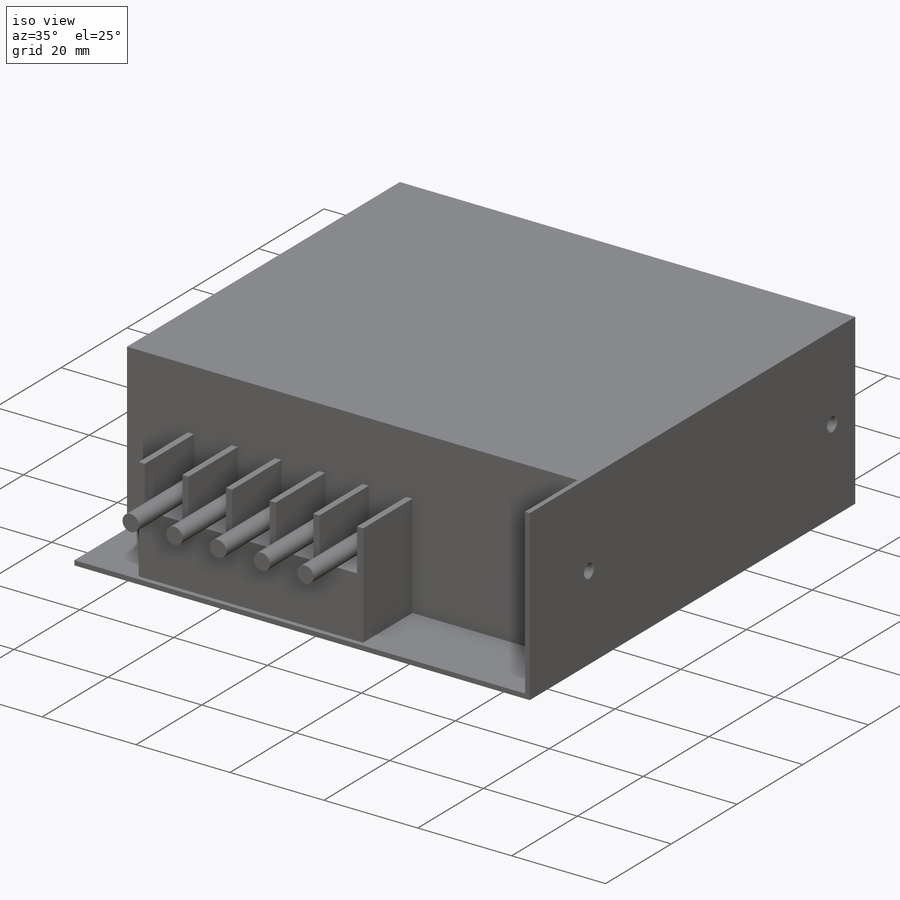
[diagram: iso view]
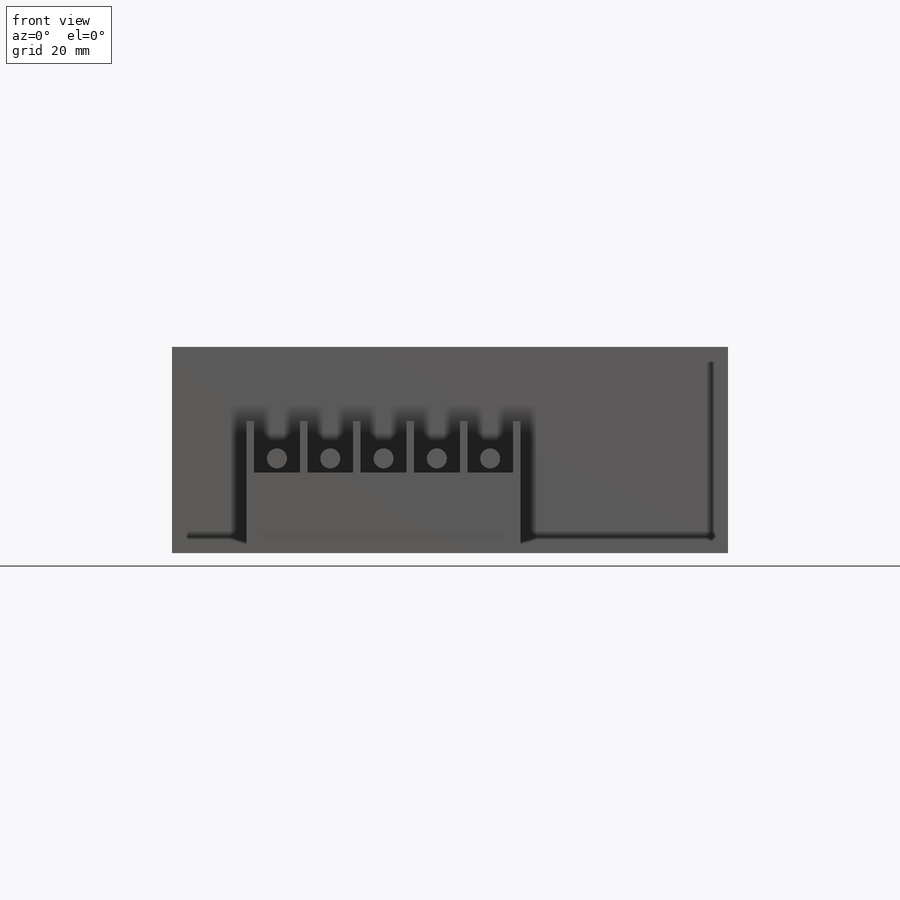
[diagram: front view]
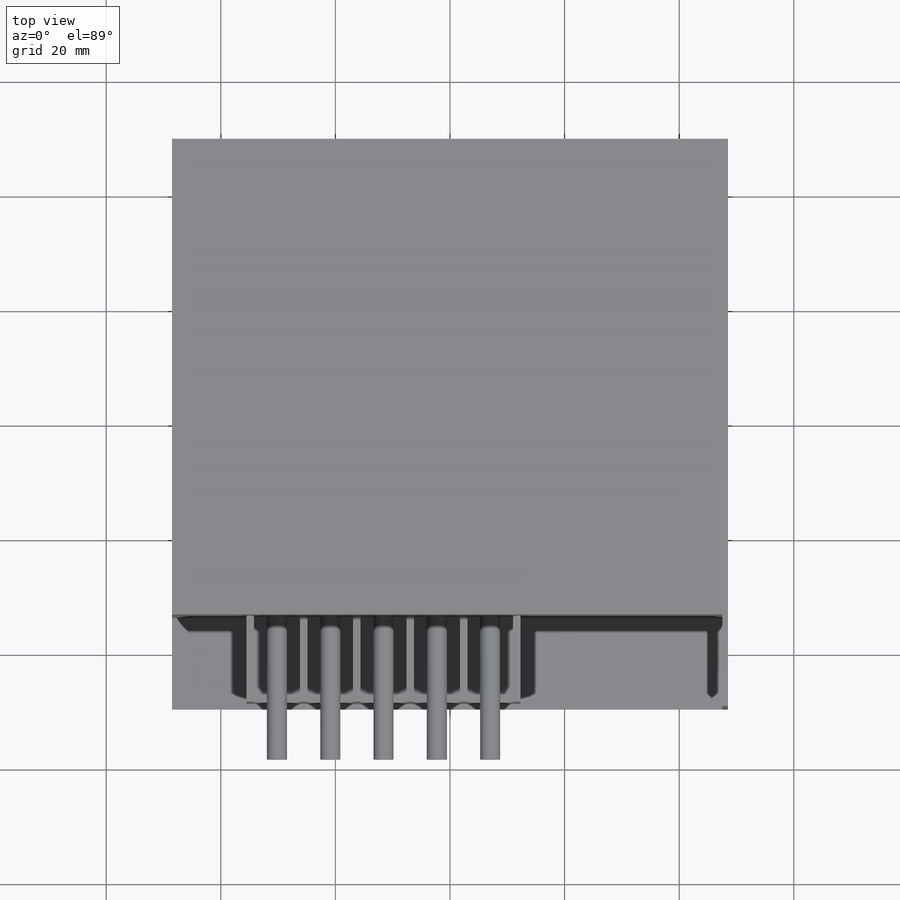
[diagram: top view]
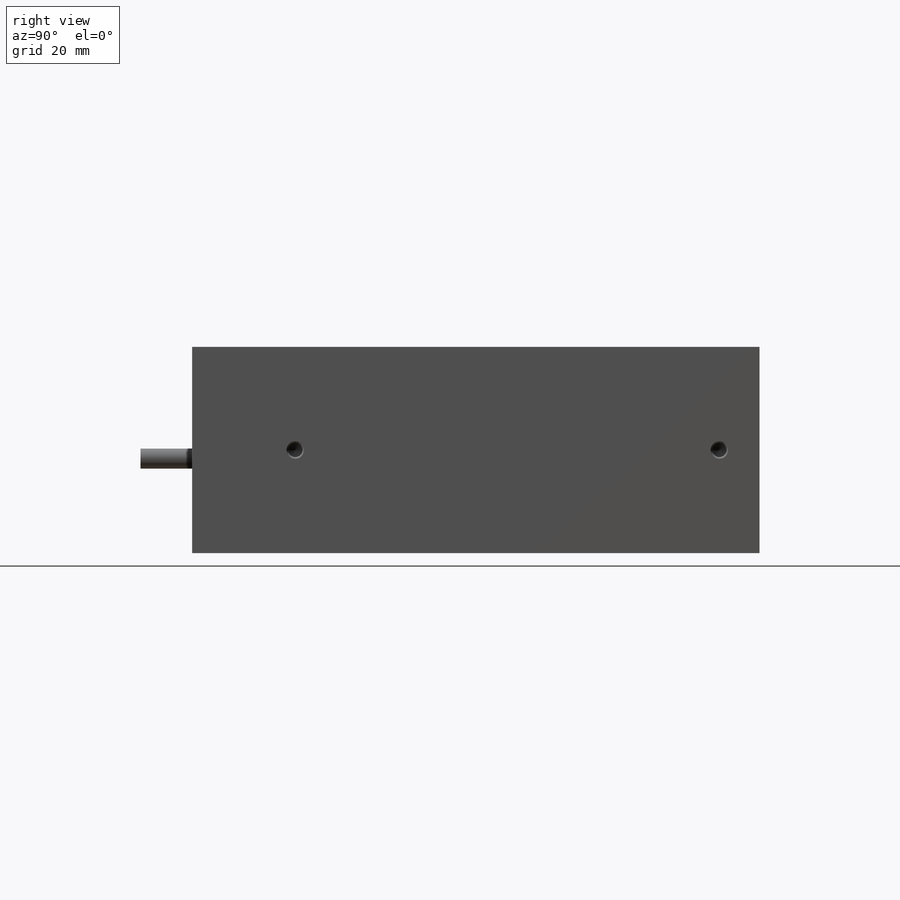
[diagram: right view]
SOLIDWORKS PART (.sldprt)
format: sldprt  version: not decoded by parser v0  size: 344,576 bytes
history: native  units: mm
features: sketch x10, thread x4, extrude x3, hole x2, material x1, cut_extrude x1 (+12 scaffold rows collapsed)
feature tree (33):
  scaffold x12  (default folders/planes/origin — collapsed)
  material  "1023 Carbon Steel Sheet (SS)"
  sketch  "Sketch1"  dims[D1=97.0mm D2=99.0mm]
  extrude  "Boss-Extrude1"  Depth=36mm
  sketch  "Sketch2"  dims[D1=1.0mm D2=1.0mm]
  cut_extrude  "Cut-Extrude1"  Depth=16mm
  sketch  "Sketch3"  dims[D1=13.0mm D2=47.8mm D3=22.0mm D4=8.0mm D5=13.0mm]
  extrude  "Boss-Extrude2"  Depth=15mm
  sketch  "Sketch4"  dims[D1=3.5mm D2=2.5mm]
  extrude  "Boss-Extrude3"  Depth=25mm
  sketch  "Sketch5"  dims[D1=74.0mm D2=18.0mm D3=18.0mm]
  hole  "M3 Tapped Hole1"  Diameter=2.5mm Depth=4.5mm
  sketch  "Sketch7"
  sketch  "Sketch6"  dims[hole-wizard template sketch: 40 standard entries collapsed; hole parameters kept: c13.Tap Drill Depth=4.5mm c13.Near C'Sink Dia.=3.05mm c13.D4=~33.297463mm c13.Near C'Sink Angle=90.0deg c14.D5=~14.816244mm c14.Drill Angle=118.0deg]
  thread  "Hole Thread1"  Diameter=4.5mm  [1 undecoded]
  thread  "Hole Thread2"  Diameter=4.5mm  [1 undecoded]
  sketch  "Sketch8"  dims[D1=55.0mm D2=20.5mm D3=51.5mm]
  hole  "M3 Tapped Hole2"  Diameter=2.5mm Depth=4.5mm
  sketch  "Sketch10"
  sketch  "Sketch9"  dims[hole-wizard template sketch: 40 standard entries collapsed; hole parameters kept: c13.Tap Drill Depth=4.5mm c13.Near C'Sink Dia.=3.05mm c13.D4=~33.297463mm c13.Near C'Sink Angle=90.0deg c14.D5=~14.816244mm c14.Drill Angle=118.0deg]
  thread  "Hole Thread3"  Diameter=4.5mm  [1 undecoded]
  thread  "Hole Thread4"  Diameter=4.5mm  [1 undecoded]
decode coverage: 18 of 20 modeling features carry decoded parameters
note: ~ marks probable driven/reference dimensions
note: 4 parameter values undecoded
note: suppression state not decoded; provenance and decode notes live in map.json
